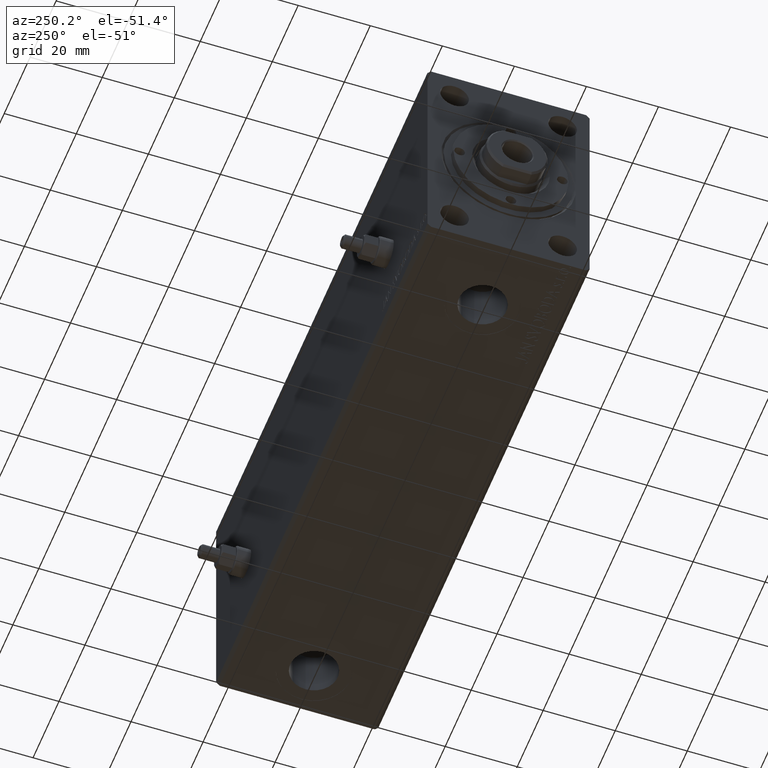
[diagram: clean part render]
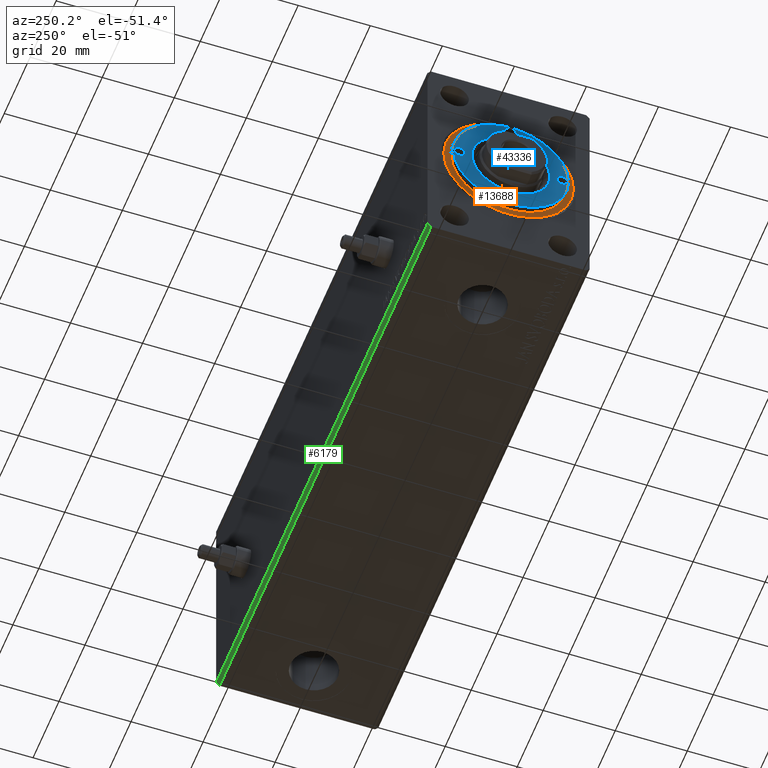
[diagram: same view with three faces highlighted in distinct colors, each labeled with its STEP entity id]
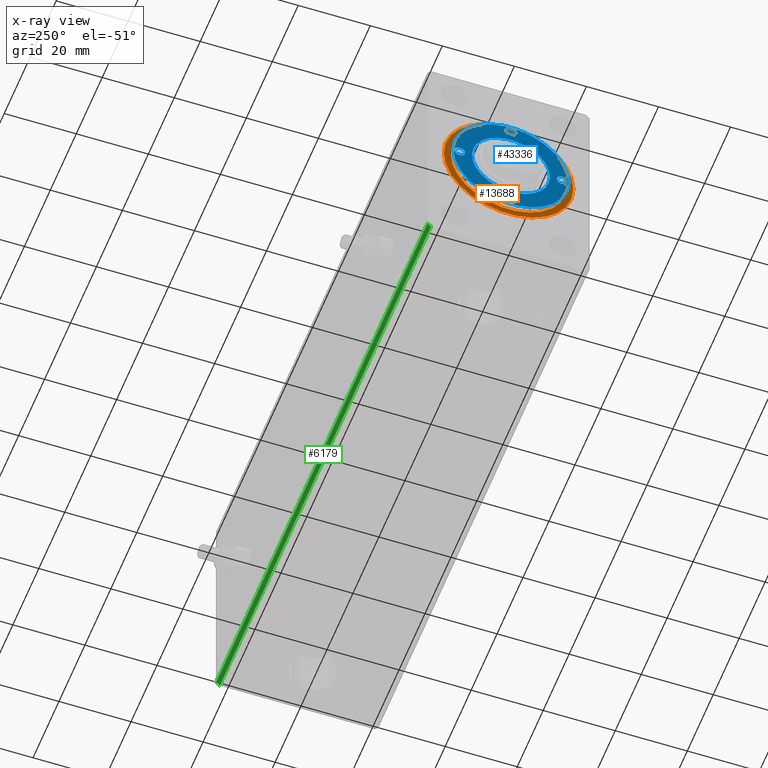
[diagram: x-ray of the same camera — body ghosted, the three highlighted faces saturated]
A machine part, auxiliary view with three faces highlighted in distinct colors.
The next image is the same camera in x-ray (body ghosted, the three faces saturated) — at least one of them is partly hidden behind the body in this view.
Their STEP definitions:

[orange] entity #13688 — the highlighted planar face has unit normal (-1, 0, 0).
#610 = FACE_BOUND ( 'NONE', #20756, .T. ) ;
#2624 = ORIENTED_EDGE ( 'NONE', *, *, #45026, .T. ) ;
#7246 = DIRECTION ( 'NONE',  ( 0.000000000000000000, 0.000000000000000000, 1.000000000000000000 ) ) ;
#11785 = CARTESIAN_POINT ( 'NONE',  ( 0.000000000000000000, 0.000000000000000000, 5.200000000000000178 ) ) ;
#13688 = ADVANCED_FACE ( 'NONE', ( #610, #39870 ), #14975, .T. ) ;
#13835 = AXIS2_PLACEMENT_3D ( 'NONE', #11785, #33248, #43106 ) ;
#13934 = ORIENTED_EDGE ( 'NONE', *, *, #16785, .T. ) ;
#14440 = EDGE_LOOP ( 'NONE', ( #13934, #2624 ) ) ;
#14656 = DIRECTION ( 'NONE',  ( 1.000000000000000000, 0.000000000000000000, 0.000000000000000000 ) ) ;
#14975 = PLANE ( 'NONE',  #16408 ) ;
#15085 = CIRCLE ( 'NONE', #23851, 18.00000000000000000 ) ;
#16408 = AXIS2_PLACEMENT_3D ( 'NONE', #18406, #36228, #18635 ) ;
#16785 = EDGE_CURVE ( 'NONE', #40650, #25123, #15085, .T. ) ;
#18165 = CIRCLE ( 'NONE', #33472, 16.00000000000000000 ) ;
#18406 = CARTESIAN_POINT ( 'NONE',  ( 0.000000000000000000, 0.000000000000000000, 5.200000000000000178 ) ) ;
#18635 = DIRECTION ( 'NONE',  ( 1.000000000000000000, 0.000000000000000000, -0.000000000000000000 ) ) ;
#19864 = CARTESIAN_POINT ( 'NONE',  ( -18.00000000000000000, 0.000000000000000000, 5.200000000000000178 ) ) ;
#20729 = CARTESIAN_POINT ( 'NONE',  ( 0.000000000000000000, 0.000000000000000000, 5.200000000000000178 ) ) ;
#20756 = EDGE_LOOP ( 'NONE', ( #20929, #31880 ) ) ;
#20929 = ORIENTED_EDGE ( 'NONE', *, *, #29852, .F. ) ;
#22306 = DIRECTION ( 'NONE',  ( 1.000000000000000000, 0.000000000000000000, 0.000000000000000000 ) ) ;
#22980 = CARTESIAN_POINT ( 'NONE',  ( 0.000000000000000000, 0.000000000000000000, 5.200000000000000178 ) ) ;
#23851 = AXIS2_PLACEMENT_3D ( 'NONE', #20729, #7246, #38081 ) ;
#24423 = CARTESIAN_POINT ( 'NONE',  ( 18.00000000000000000, 2.204364238465235428E-15, 5.200000000000000178 ) ) ;
#25123 = VERTEX_POINT ( 'NONE', #24423 ) ;
#25970 = DIRECTION ( 'NONE',  ( 0.000000000000000000, 0.000000000000000000, 1.000000000000000000 ) ) ;
#26718 = EDGE_CURVE ( 'NONE', #44008, #35603, #18165, .T. ) ;
#27824 = CARTESIAN_POINT ( 'NONE',  ( 16.00000000000000000, 1.959434878635765131E-15, 5.200000000000000178 ) ) ;
#29852 = EDGE_CURVE ( 'NONE', #35603, #44008, #39392, .T. ) ;
#31880 = ORIENTED_EDGE ( 'NONE', *, *, #26718, .F. ) ;
#33248 = DIRECTION ( 'NONE',  ( 0.000000000000000000, 0.000000000000000000, 1.000000000000000000 ) ) ;
#33472 = AXIS2_PLACEMENT_3D ( 'NONE', #38879, #35462, #14656 ) ;
#35462 = DIRECTION ( 'NONE',  ( 0.000000000000000000, 0.000000000000000000, 1.000000000000000000 ) ) ;
#35603 = VERTEX_POINT ( 'NONE', #36407 ) ;
#36228 = DIRECTION ( 'NONE',  ( 0.000000000000000000, 0.000000000000000000, 1.000000000000000000 ) ) ;
#36407 = CARTESIAN_POINT ( 'NONE',  ( -16.00000000000000000, 0.000000000000000000, 5.200000000000000178 ) ) ;
#37062 = CIRCLE ( 'NONE', #39270, 18.00000000000000000 ) ;
#38081 = DIRECTION ( 'NONE',  ( 1.000000000000000000, 0.000000000000000000, 0.000000000000000000 ) ) ;
#38879 = CARTESIAN_POINT ( 'NONE',  ( 0.000000000000000000, 0.000000000000000000, 5.200000000000000178 ) ) ;
#39270 = AXIS2_PLACEMENT_3D ( 'NONE', #22980, #25970, #22306 ) ;
#39392 = CIRCLE ( 'NONE', #13835, 16.00000000000000000 ) ;
#39870 = FACE_OUTER_BOUND ( 'NONE', #14440, .T. ) ;
#40650 = VERTEX_POINT ( 'NONE', #19864 ) ;
#43106 = DIRECTION ( 'NONE',  ( 1.000000000000000000, 0.000000000000000000, 0.000000000000000000 ) ) ;
#44008 = VERTEX_POINT ( 'NONE', #27824 ) ;
#45026 = EDGE_CURVE ( 'NONE', #25123, #40650, #37062, .T. ) ;

[blue] entity #43336 — the highlighted planar face has unit normal (-1, 0, 0).
#221 = DIRECTION ( 'NONE',  ( -0.000000000000000000, -0.000000000000000000, 1.000000000000000000 ) ) ;
#484 = VERTEX_POINT ( 'NONE', #10739 ) ;
#654 = VERTEX_POINT ( 'NONE', #19844 ) ;
#950 = CARTESIAN_POINT ( 'NONE',  ( 0.000000000000000000, 0.000000000000000000, 6.999999999999999112 ) ) ;
#1051 = DIRECTION ( 'NONE',  ( -0.000000000000000000, -0.000000000000000000, 1.000000000000000000 ) ) ;
#1885 = ORIENTED_EDGE ( 'NONE', *, *, #31946, .F. ) ;
#2569 = EDGE_CURVE ( 'NONE', #654, #484, #18465, .T. ) ;
#2843 = EDGE_CURVE ( 'NONE', #19695, #27226, #27934, .T. ) ;
#2972 = DIRECTION ( 'NONE',  ( 1.000000000000000000, 0.000000000000000000, 0.000000000000000000 ) ) ;
#4705 = CARTESIAN_POINT ( 'NONE',  ( 12.75000000000000355, 1.836970198721025004E-16, 6.999999999999999112 ) ) ;
#4759 = CIRCLE ( 'NONE', #31768, 1.499999999999996225 ) ;
#4795 = CIRCLE ( 'NONE', #17936, 16.00000000000000000 ) ;
#6302 = ORIENTED_EDGE ( 'NONE', *, *, #43291, .F. ) ;
#6394 = DIRECTION ( 'NONE',  ( 1.000000000000000000, 0.000000000000000000, 0.000000000000000000 ) ) ;
#6714 = DIRECTION ( 'NONE',  ( 1.000000000000000000, 0.000000000000000000, 0.000000000000000000 ) ) ;
#6771 = AXIS2_PLACEMENT_3D ( 'NONE', #43047, #31626, #21819 ) ;
#7739 = CARTESIAN_POINT ( 'NONE',  ( 0.000000000000000000, 0.000000000000000000, 6.999999999999999112 ) ) ;
#7752 = CARTESIAN_POINT ( 'NONE',  ( -14.25000000000000000, 0.000000000000000000, 6.999999999999999112 ) ) ;
#8217 = VERTEX_POINT ( 'NONE', #26530 ) ;
#10033 = DIRECTION ( 'NONE',  ( 1.000000000000000000, 0.000000000000000000, 0.000000000000000000 ) ) ;
#10656 = VERTEX_POINT ( 'NONE', #39116 ) ;
#10739 = CARTESIAN_POINT ( 'NONE',  ( -1.499999999999996891, -14.25000000000000000, 6.999999999999999112 ) ) ;
#11223 = FACE_BOUND ( 'NONE', #15742, .T. ) ;
#11338 = EDGE_LOOP ( 'NONE', ( #24142, #15610 ) ) ;
#11571 = AXIS2_PLACEMENT_3D ( 'NONE', #20666, #42147, #6714 ) ;
#12549 = DIRECTION ( 'NONE',  ( -0.000000000000000000, -0.000000000000000000, -1.000000000000000000 ) ) ;
#12592 = AXIS2_PLACEMENT_3D ( 'NONE', #7752, #14596, #28994 ) ;
#13644 = CIRCLE ( 'NONE', #26063, 1.499999999999996225 ) ;
#13670 = EDGE_CURVE ( 'NONE', #35233, #14516, #4759, .T. ) ;
#13745 = DIRECTION ( 'NONE',  ( -0.000000000000000000, -0.000000000000000000, 1.000000000000000000 ) ) ;
#13857 = EDGE_LOOP ( 'NONE', ( #31217, #33335 ) ) ;
#14051 = AXIS2_PLACEMENT_3D ( 'NONE', #27200, #33587, #6394 ) ;
#14516 = VERTEX_POINT ( 'NONE', #21184 ) ;
#14596 = DIRECTION ( 'NONE',  ( -0.000000000000000000, -0.000000000000000000, 1.000000000000000000 ) ) ;
#15076 = EDGE_LOOP ( 'NONE', ( #25209, #41296 ) ) ;
#15101 = FACE_BOUND ( 'NONE', #15076, .T. ) ;
#15607 = AXIS2_PLACEMENT_3D ( 'NONE', #23102, #34052, #2972 ) ;
#15610 = ORIENTED_EDGE ( 'NONE', *, *, #39759, .T. ) ;
#15742 = EDGE_LOOP ( 'NONE', ( #6302, #1885 ) ) ;
#15767 = DIRECTION ( 'NONE',  ( 1.000000000000000000, 0.000000000000000000, 0.000000000000000000 ) ) ;
#16396 = EDGE_CURVE ( 'NONE', #20122, #39533, #40599, .T. ) ;
#16640 = CARTESIAN_POINT ( 'NONE',  ( -16.00000000000000000, 0.000000000000000000, 6.999999999999999112 ) ) ;
#17936 = AXIS2_PLACEMENT_3D ( 'NONE', #7739, #21689, #35620 ) ;
#17945 = VERTEX_POINT ( 'NONE', #28954 ) ;
#18465 = CIRCLE ( 'NONE', #6771, 1.499999999999996891 ) ;
#19629 = AXIS2_PLACEMENT_3D ( 'NONE', #25139, #39505, #39059 ) ;
#19695 = VERTEX_POINT ( 'NONE', #16640 ) ;
#19844 = CARTESIAN_POINT ( 'NONE',  ( 1.499999999999996891, -14.25000000000000000, 6.999999999999999112 ) ) ;
#20122 = VERTEX_POINT ( 'NONE', #27797 ) ;
#20282 = CARTESIAN_POINT ( 'NONE',  ( 16.00000000000000000, 1.959434878635765131E-15, 6.999999999999999112 ) ) ;
#20369 = AXIS2_PLACEMENT_3D ( 'NONE', #31529, #41358, #34282 ) ;
#20666 = CARTESIAN_POINT ( 'NONE',  ( 0.000000000000000000, 14.25000000000000000, 6.999999999999999112 ) ) ;
#21184 = CARTESIAN_POINT ( 'NONE',  ( 15.74999999999999645, 0.000000000000000000, 6.999999999999999112 ) ) ;
#21633 = DIRECTION ( 'NONE',  ( 1.000000000000000000, 0.000000000000000000, 0.000000000000000000 ) ) ;
#21689 = DIRECTION ( 'NONE',  ( 0.000000000000000000, 0.000000000000000000, 1.000000000000000000 ) ) ;
#21819 = DIRECTION ( 'NONE',  ( 1.000000000000000000, 0.000000000000000000, 0.000000000000000000 ) ) ;
#21836 = AXIS2_PLACEMENT_3D ( 'NONE', #37017, #12549, #15767 ) ;
#22285 = VERTEX_POINT ( 'NONE', #30036 ) ;
#23102 = CARTESIAN_POINT ( 'NONE',  ( 0.000000000000000000, 0.000000000000000000, 6.999999999999999112 ) ) ;
#23148 = AXIS2_PLACEMENT_3D ( 'NONE', #950, #28391, #29060 ) ;
#23824 = CARTESIAN_POINT ( 'NONE',  ( -14.25000000000000000, 0.000000000000000000, 6.999999999999999112 ) ) ;
#24142 = ORIENTED_EDGE ( 'NONE', *, *, #2843, .T. ) ;
#25139 = CARTESIAN_POINT ( 'NONE',  ( 0.000000000000000000, -14.25000000000000000, 6.999999999999999112 ) ) ;
#25209 = ORIENTED_EDGE ( 'NONE', *, *, #16396, .F. ) ;
#25216 = ORIENTED_EDGE ( 'NONE', *, *, #2569, .F. ) ;
#25667 = CARTESIAN_POINT ( 'NONE',  ( -1.499999999999996891, 14.25000000000000000, 6.999999999999999112 ) ) ;
#26063 = AXIS2_PLACEMENT_3D ( 'NONE', #23824, #13745, #31126 ) ;
#26330 = EDGE_CURVE ( 'NONE', #39533, #20122, #31274, .T. ) ;
#26530 = CARTESIAN_POINT ( 'NONE',  ( -10.79999999999997584, 1.322618543079138535E-15, 6.999999999999999112 ) ) ;
#26771 = EDGE_CURVE ( 'NONE', #22285, #8217, #40036, .T. ) ;
#27052 = EDGE_CURVE ( 'NONE', #484, #654, #36395, .T. ) ;
#27200 = CARTESIAN_POINT ( 'NONE',  ( 0.000000000000000000, 0.000000000000000000, 6.999999999999999112 ) ) ;
#27226 = VERTEX_POINT ( 'NONE', #20282 ) ;
#27791 = EDGE_CURVE ( 'NONE', #14516, #35233, #28418, .T. ) ;
#27797 = CARTESIAN_POINT ( 'NONE',  ( 1.499999999999996891, 14.25000000000000000, 6.999999999999999112 ) ) ;
#27934 = CIRCLE ( 'NONE', #14051, 16.00000000000000000 ) ;
#28391 = DIRECTION ( 'NONE',  ( 0.000000000000000000, 0.000000000000000000, 1.000000000000000000 ) ) ;
#28418 = CIRCLE ( 'NONE', #20369, 1.499999999999996225 ) ;
#28954 = CARTESIAN_POINT ( 'NONE',  ( -15.74999999999999645, 1.836970198721025004E-16, 6.999999999999999112 ) ) ;
#28984 = ORIENTED_EDGE ( 'NONE', *, *, #13670, .F. ) ;
#28994 = DIRECTION ( 'NONE',  ( 1.000000000000000000, 0.000000000000000000, 0.000000000000000000 ) ) ;
#29060 = DIRECTION ( 'NONE',  ( 1.000000000000000000, 0.000000000000000000, -0.000000000000000000 ) ) ;
#30036 = CARTESIAN_POINT ( 'NONE',  ( 10.79999999999997584, 0.000000000000000000, 6.999999999999999112 ) ) ;
#31126 = DIRECTION ( 'NONE',  ( 1.000000000000000000, 0.000000000000000000, 0.000000000000000000 ) ) ;
#31217 = ORIENTED_EDGE ( 'NONE', *, *, #26771, .T. ) ;
#31274 = CIRCLE ( 'NONE', #11571, 1.499999999999996891 ) ;
#31529 = CARTESIAN_POINT ( 'NONE',  ( 14.25000000000000000, 0.000000000000000000, 6.999999999999999112 ) ) ;
#31578 = EDGE_LOOP ( 'NONE', ( #44481, #28984 ) ) ;
#31626 = DIRECTION ( 'NONE',  ( -0.000000000000000000, -0.000000000000000000, 1.000000000000000000 ) ) ;
#31768 = AXIS2_PLACEMENT_3D ( 'NONE', #32340, #1051, #21633 ) ;
#31946 = EDGE_CURVE ( 'NONE', #17945, #10656, #41088, .T. ) ;
#32248 = FACE_BOUND ( 'NONE', #39652, .T. ) ;
#32340 = CARTESIAN_POINT ( 'NONE',  ( 14.25000000000000000, 0.000000000000000000, 6.999999999999999112 ) ) ;
#32472 = FACE_BOUND ( 'NONE', #13857, .T. ) ;
#32698 = FACE_BOUND ( 'NONE', #31578, .T. ) ;
#33335 = ORIENTED_EDGE ( 'NONE', *, *, #33827, .T. ) ;
#33587 = DIRECTION ( 'NONE',  ( 0.000000000000000000, 0.000000000000000000, 1.000000000000000000 ) ) ;
#33827 = EDGE_CURVE ( 'NONE', #8217, #22285, #35330, .T. ) ;
#34052 = DIRECTION ( 'NONE',  ( -0.000000000000000000, -0.000000000000000000, -1.000000000000000000 ) ) ;
#34282 = DIRECTION ( 'NONE',  ( 1.000000000000000000, 0.000000000000000000, 0.000000000000000000 ) ) ;
#35233 = VERTEX_POINT ( 'NONE', #4705 ) ;
#35330 = CIRCLE ( 'NONE', #15607, 10.79999999999997584 ) ;
#35461 = PLANE ( 'NONE',  #23148 ) ;
#35620 = DIRECTION ( 'NONE',  ( 1.000000000000000000, 0.000000000000000000, 0.000000000000000000 ) ) ;
#36357 = FACE_OUTER_BOUND ( 'NONE', #11338, .T. ) ;
#36395 = CIRCLE ( 'NONE', #19629, 1.499999999999996891 ) ;
#37017 = CARTESIAN_POINT ( 'NONE',  ( 0.000000000000000000, 0.000000000000000000, 6.999999999999999112 ) ) ;
#38407 = AXIS2_PLACEMENT_3D ( 'NONE', #42262, #221, #10033 ) ;
#39059 = DIRECTION ( 'NONE',  ( 1.000000000000000000, 0.000000000000000000, 0.000000000000000000 ) ) ;
#39116 = CARTESIAN_POINT ( 'NONE',  ( -12.75000000000000355, 0.000000000000000000, 6.999999999999999112 ) ) ;
#39505 = DIRECTION ( 'NONE',  ( -0.000000000000000000, -0.000000000000000000, 1.000000000000000000 ) ) ;
#39533 = VERTEX_POINT ( 'NONE', #25667 ) ;
#39652 = EDGE_LOOP ( 'NONE', ( #25216, #40398 ) ) ;
#39759 = EDGE_CURVE ( 'NONE', #27226, #19695, #4795, .T. ) ;
#40036 = CIRCLE ( 'NONE', #21836, 10.79999999999997584 ) ;
#40398 = ORIENTED_EDGE ( 'NONE', *, *, #27052, .F. ) ;
#40599 = CIRCLE ( 'NONE', #38407, 1.499999999999996891 ) ;
#41088 = CIRCLE ( 'NONE', #12592, 1.499999999999996225 ) ;
#41296 = ORIENTED_EDGE ( 'NONE', *, *, #26330, .F. ) ;
#41358 = DIRECTION ( 'NONE',  ( -0.000000000000000000, -0.000000000000000000, 1.000000000000000000 ) ) ;
#42147 = DIRECTION ( 'NONE',  ( -0.000000000000000000, -0.000000000000000000, 1.000000000000000000 ) ) ;
#42262 = CARTESIAN_POINT ( 'NONE',  ( 0.000000000000000000, 14.25000000000000000, 6.999999999999999112 ) ) ;
#43047 = CARTESIAN_POINT ( 'NONE',  ( 0.000000000000000000, -14.25000000000000000, 6.999999999999999112 ) ) ;
#43291 = EDGE_CURVE ( 'NONE', #10656, #17945, #13644, .T. ) ;
#43336 = ADVANCED_FACE ( 'NONE', ( #11223, #15101, #32698, #32248, #32472, #36357 ), #35461, .T. ) ;
#44481 = ORIENTED_EDGE ( 'NONE', *, *, #27791, .F. ) ;

[green] entity #6179 — the highlighted planar face has unit normal (0, -0.7071, 0.7071).
#247 = EDGE_LOOP ( 'NONE', ( #21307, #26850, #16272, #39615 ) ) ;
#851 = DIRECTION ( 'NONE',  ( 0.000000000000000000, 0.7071067811865474617, 0.7071067811865474617 ) ) ;
#1349 = FACE_OUTER_BOUND ( 'NONE', #247, .T. ) ;
#2247 = DIRECTION ( 'NONE',  ( -1.000000000000000000, -0.000000000000000000, -0.000000000000000000 ) ) ;
#3124 = VECTOR ( 'NONE', #851, 1000.000000000000114 ) ;
#3128 = EDGE_CURVE ( 'NONE', #43326, #22488, #38090, .T. ) ;
#6179 = ADVANCED_FACE ( 'NONE', ( #1349 ), #29232, .F. ) ;
#7780 = LINE ( 'NONE', #16175, #9278 ) ;
#9278 = VECTOR ( 'NONE', #2247, 1000.000000000000000 ) ;
#10898 = CARTESIAN_POINT ( 'NONE',  ( 163.0000000000000000, 21.49999999999999645, -32.50000000000000000 ) ) ;
#11152 = CARTESIAN_POINT ( 'NONE',  ( 0.000000000000000000, 21.49999999999999645, -32.50000000000000000 ) ) ;
#12061 = CARTESIAN_POINT ( 'NONE',  ( 163.0000000000000000, 21.49999999999999645, -32.50000000000000000 ) ) ;
#12330 = LINE ( 'NONE', #36129, #12732 ) ;
#12732 = VECTOR ( 'NONE', #40210, 1000.000000000000000 ) ;
#15486 = DIRECTION ( 'NONE',  ( 0.000000000000000000, -0.7071067811865474617, -0.7071067811865474617 ) ) ;
#16175 = CARTESIAN_POINT ( 'NONE',  ( 163.0000000000000000, 21.49999999999999645, -32.50000000000000000 ) ) ;
#16272 = ORIENTED_EDGE ( 'NONE', *, *, #3128, .F. ) ;
#17814 = AXIS2_PLACEMENT_3D ( 'NONE', #12061, #43156, #15486 ) ;
#18675 = EDGE_CURVE ( 'NONE', #43326, #20679, #7780, .T. ) ;
#20679 = VERTEX_POINT ( 'NONE', #11152 ) ;
#21307 = ORIENTED_EDGE ( 'NONE', *, *, #33671, .T. ) ;
#22211 = LINE ( 'NONE', #43668, #31671 ) ;
#22488 = VERTEX_POINT ( 'NONE', #45056 ) ;
#26850 = ORIENTED_EDGE ( 'NONE', *, *, #35828, .F. ) ;
#28265 = CARTESIAN_POINT ( 'NONE',  ( 0.000000000000000000, 22.49999999999999645, -31.50000000000000000 ) ) ;
#28837 = CARTESIAN_POINT ( 'NONE',  ( 163.0000000000000000, 21.49999999999999645, -32.50000000000000000 ) ) ;
#29232 = PLANE ( 'NONE',  #17814 ) ;
#31543 = VERTEX_POINT ( 'NONE', #28265 ) ;
#31671 = VECTOR ( 'NONE', #32484, 1000.000000000000114 ) ;
#32484 = DIRECTION ( 'NONE',  ( 0.000000000000000000, 0.7071067811865474617, 0.7071067811865474617 ) ) ;
#33671 = EDGE_CURVE ( 'NONE', #20679, #31543, #22211, .T. ) ;
#35828 = EDGE_CURVE ( 'NONE', #22488, #31543, #12330, .T. ) ;
#36129 = CARTESIAN_POINT ( 'NONE',  ( 163.0000000000000000, 22.49999999999999645, -31.50000000000000000 ) ) ;
#38090 = LINE ( 'NONE', #10898, #3124 ) ;
#39615 = ORIENTED_EDGE ( 'NONE', *, *, #18675, .T. ) ;
#40210 = DIRECTION ( 'NONE',  ( -1.000000000000000000, -0.000000000000000000, -0.000000000000000000 ) ) ;
#43156 = DIRECTION ( 'NONE',  ( 0.000000000000000000, -0.7071067811865475727, 0.7071067811865475727 ) ) ;
#43326 = VERTEX_POINT ( 'NONE', #28837 ) ;
#43668 = CARTESIAN_POINT ( 'NONE',  ( 0.000000000000000000, 21.49999999999999645, -32.50000000000000000 ) ) ;
#45056 = CARTESIAN_POINT ( 'NONE',  ( 163.0000000000000000, 22.49999999999999645, -31.50000000000000000 ) ) ;